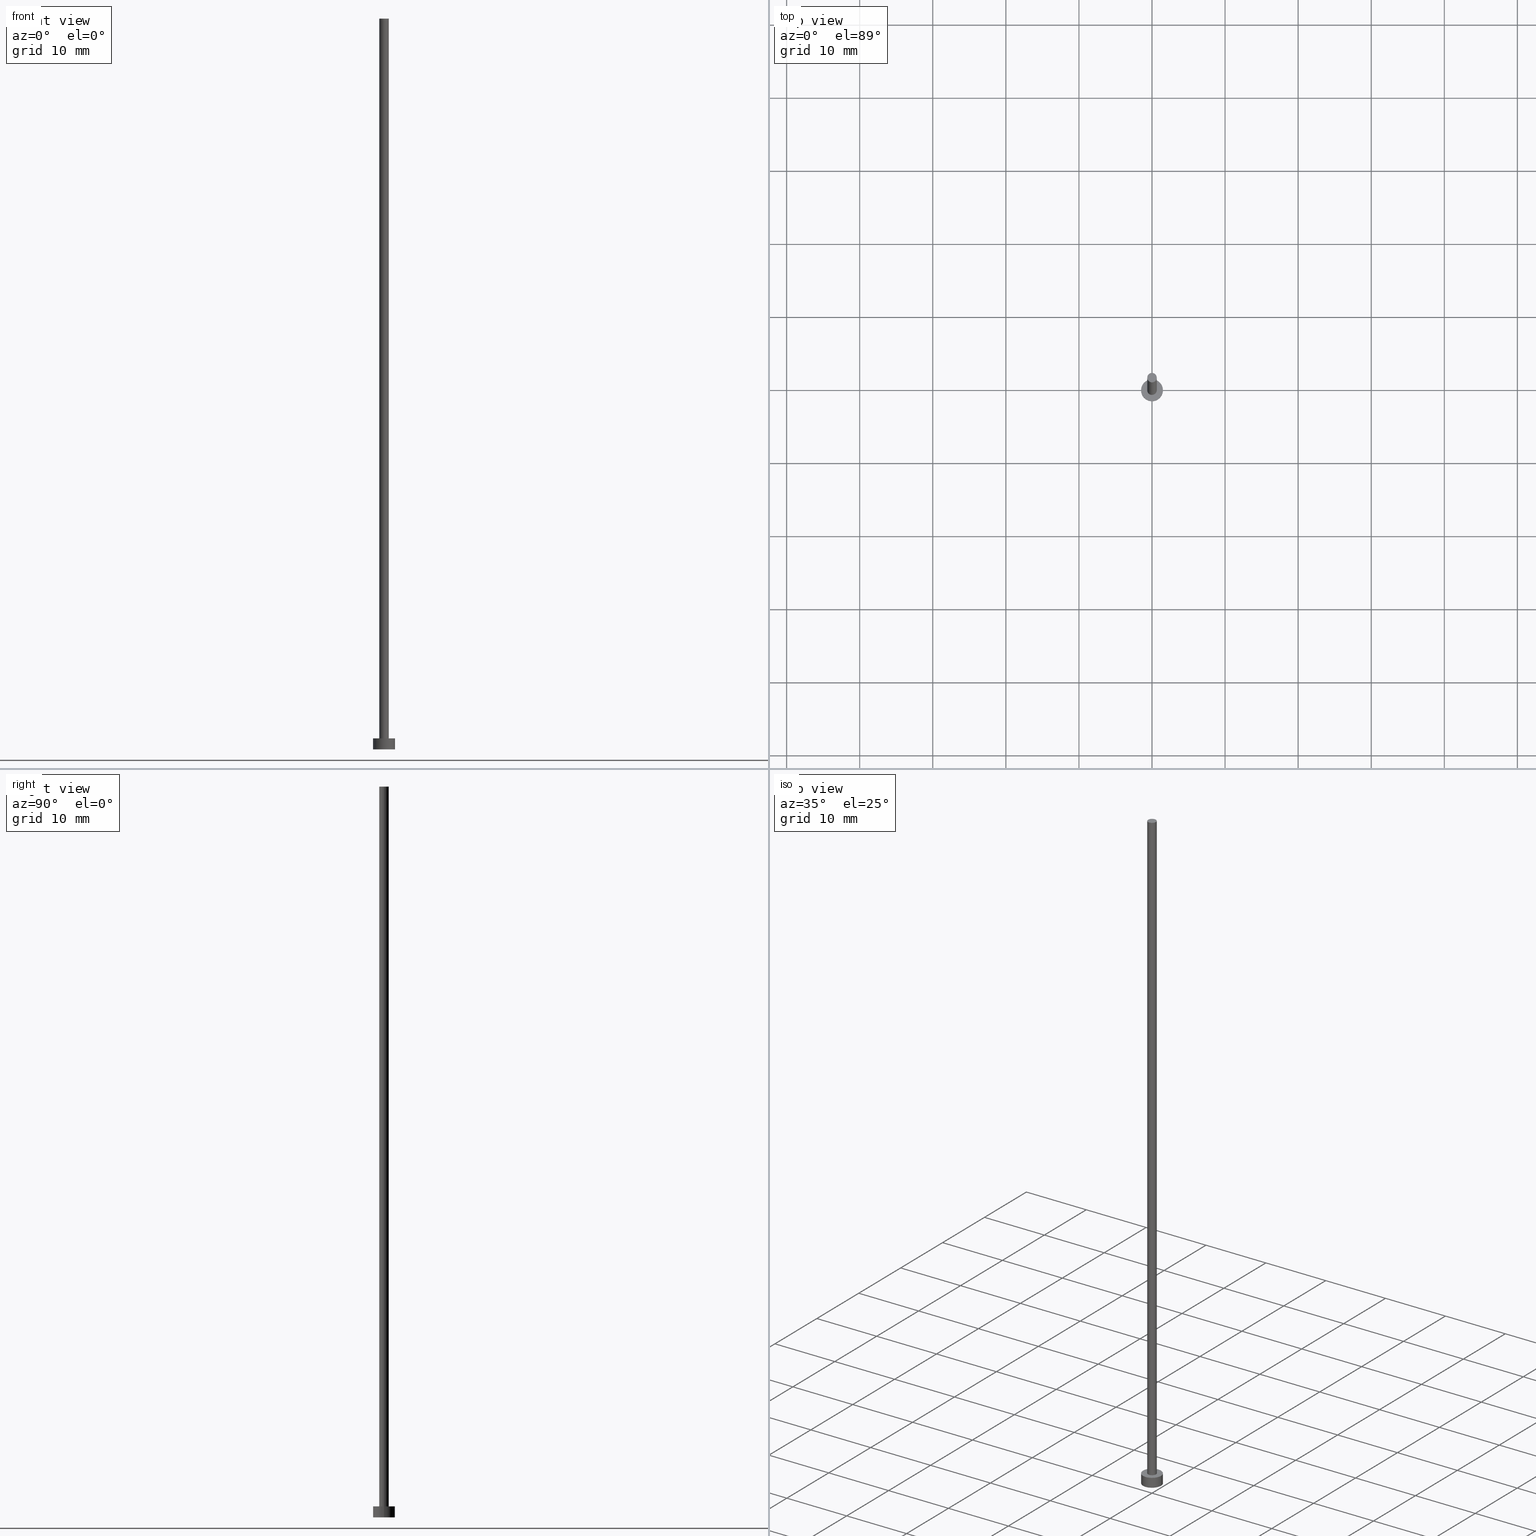
[diagram: canonical four-view strip — front | top / right | iso, engineering-drawing reading convention]
A machine part, canonical four-view strip (front | top / right | iso — engineering-drawing reading convention). The complete STEP part file that produces these views, byte-faithful:
ISO-10303-21;
HEADER;
FILE_DESCRIPTION (( 'STEP AP203' ),
    '1' );
FILE_NAME ('1749.STEP',
    '2023-02-13T15:26:27',
    ( '' ),
    ( '' ),
    'SwSTEP 2.0',
    'SolidWorks 2019',
    '' );
FILE_SCHEMA (( 'CONFIG_CONTROL_DESIGN' ));
ENDSEC;

DATA;
#1 = ORIENTED_EDGE ( 'NONE', *, *, #11, .F. ) ;
#2 = LINE ( 'NONE', #107, #121 ) ;
#3 = AXIS2_PLACEMENT_3D ( 'NONE', #81, #172, #35 ) ;
#4 = DIRECTION ( 'NONE',  ( 0.000000000000000000, 0.000000000000000000, 1.000000000000000000 ) ) ;
#5 = PERSON_AND_ORGANIZATION_ROLE ( 'creator' ) ;
#6 = CARTESIAN_POINT ( 'NONE',  ( 0.000000000000000000, 0.000000000000000000, 1.500000000000000000 ) ) ;
#7 = DIRECTION ( 'NONE',  ( -0.000000000000000000, -0.000000000000000000, -1.000000000000000000 ) ) ;
#8 = PRODUCT_RELATED_PRODUCT_CATEGORY ( 'detail', '', ( #56 ) ) ;
#9 = APPROVAL_PERSON_ORGANIZATION ( #180, #177, #71 ) ;
#10 = PERSON_AND_ORGANIZATION_ROLE ( 'creator' ) ;
#11 = EDGE_CURVE ( 'NONE', #237, #76, #69, .T. ) ;
#12 = APPROVAL_STATUS ( 'not_yet_approved' ) ;
#13 = ORIENTED_EDGE ( 'NONE', *, *, #221, .T. ) ;
#14 = CC_DESIGN_PERSON_AND_ORGANIZATION_ASSIGNMENT ( #66, #163, ( #166 ) ) ;
#15 = PERSON_AND_ORGANIZATION ( #217, #175 ) ;
#16 = AXIS2_PLACEMENT_3D ( 'NONE', #143, #207, #61 ) ;
#17 = CARTESIAN_POINT ( 'NONE',  ( -0.6500000000000000222, 0.000000000000000000, 1.500000000000000000 ) ) ;
#18 = CARTESIAN_POINT ( 'NONE',  ( 0.000000000000000000, 0.000000000000000000, 0.000000000000000000 ) ) ;
#19 = DIRECTION ( 'NONE',  ( 0.000000000000000000, 0.000000000000000000, 1.000000000000000000 ) ) ;
#20 = ADVANCED_FACE ( 'NONE', ( #116 ), #84, .T. ) ;
#21 =( NAMED_UNIT ( * ) PLANE_ANGLE_UNIT ( ) SI_UNIT ( $, .RADIAN. ) );
#22 = CARTESIAN_POINT ( 'NONE',  ( -1.500000000000000222, 0.000000000000000000, 1.500000000000000000 ) ) ;
#23 = COORDINATED_UNIVERSAL_TIME_OFFSET ( 1, 0, .AHEAD. ) ;
#24 = CYLINDRICAL_SURFACE ( 'NONE', #16, 1.500000000000000222 ) ;
#25 = DIRECTION ( 'NONE',  ( 0.000000000000000000, 0.000000000000000000, 1.000000000000000000 ) ) ;
#26 = EDGE_CURVE ( 'NONE', #115, #132, #2, .T. ) ;
#27 = DIRECTION ( 'NONE',  ( 0.000000000000000000, 0.000000000000000000, 1.000000000000000000 ) ) ;
#28 = PERSON_AND_ORGANIZATION ( #217, #175 ) ;
#29 = PLANE ( 'NONE',  #133 ) ;
#30 = EDGE_CURVE ( 'NONE', #222, #243, #145, .T. ) ;
#31 = CARTESIAN_POINT ( 'NONE',  ( 0.000000000000000000, 0.000000000000000000, 1.500000000000000000 ) ) ;
#32 = EDGE_LOOP ( 'NONE', ( #46, #140 ) ) ;
#33 = CARTESIAN_POINT ( 'NONE',  ( 0.000000000000000000, 0.000000000000000000, 1.500000000000000000 ) ) ;
#34 = DIRECTION ( 'NONE',  ( 1.000000000000000000, 0.000000000000000000, -0.000000000000000000 ) ) ;
#35 = DIRECTION ( 'NONE',  ( 1.000000000000000000, 0.000000000000000000, 0.000000000000000000 ) ) ;
#36 = DIRECTION ( 'NONE',  ( -1.000000000000000000, 0.000000000000000000, 0.000000000000000000 ) ) ;
#37 = CIRCLE ( 'NONE', #199, 0.6500000000000000222 ) ;
#38 = APPROVAL_PERSON_ORGANIZATION ( #28, #151, #249 ) ;
#39 = APPROVAL ( #12, 'NEUR�EN�' ) ;
#40 = APPROVAL_DATE_TIME ( #108, #151 ) ;
#41 = LINE ( 'NONE', #22, #136 ) ;
#42 = MANIFOLD_SOLID_BREP ( 'P�idat vysunut�m3', #174 ) ;
#43 = CARTESIAN_POINT ( 'NONE',  ( -0.6500000000000000222, 0.000000000000000000, 100.0000000000000000 ) ) ;
#44 = EDGE_CURVE ( 'NONE', #167, #202, #156, .T. ) ;
#45 = AXIS2_PLACEMENT_3D ( 'NONE', #6, #25, #192 ) ;
#46 = ORIENTED_EDGE ( 'NONE', *, *, #159, .F. ) ;
#47 = DIRECTION ( 'NONE',  ( -0.000000000000000000, -0.000000000000000000, -1.000000000000000000 ) ) ;
#48 = ORIENTED_EDGE ( 'NONE', *, *, #30, .T. ) ;
#49 = CALENDAR_DATE ( 2023, 13, 2 ) ;
#50 = EDGE_LOOP ( 'NONE', ( #98, #73 ) ) ;
#51 = AXIS2_PLACEMENT_3D ( 'NONE', #33, #19, #160 ) ;
#52 = ADVANCED_FACE ( 'NONE', ( #124 ), #24, .T. ) ;
#53 = DATE_AND_TIME ( #49, #242 ) ;
#54 = AXIS2_PLACEMENT_3D ( 'NONE', #111, #89, #72 ) ;
#55 = PLANE ( 'NONE',  #233 ) ;
#56 = PRODUCT ( '1749', '1749', '', ( #90 ) ) ;
#57 = EDGE_LOOP ( 'NONE', ( #235, #161, #48, #190 ) ) ;
#58 = DIRECTION ( 'NONE',  ( -0.000000000000000000, -0.000000000000000000, -1.000000000000000000 ) ) ;
#59 = CARTESIAN_POINT ( 'NONE',  ( -0.6500000000000000222, 0.000000000000000000, 100.0000000000000000 ) ) ;
#60 = DATE_TIME_ROLE ( 'creation_date' ) ;
#61 = DIRECTION ( 'NONE',  ( -1.000000000000000000, 0.000000000000000000, 0.000000000000000000 ) ) ;
#62 = AXIS2_PLACEMENT_3D ( 'NONE', #252, #78, #162 ) ;
#63 = CC_DESIGN_APPROVAL ( #177, ( #129 ) ) ;
#64 = PLANE ( 'NONE',  #189 ) ;
#65 = ADVANCED_FACE ( 'NONE', ( #195 ), #193, .T. ) ;
#66 = PERSON_AND_ORGANIZATION ( #217, #175 ) ;
#67 = DIRECTION ( 'NONE',  ( 1.000000000000000000, 0.000000000000000000, 0.000000000000000000 ) ) ;
#68 = CARTESIAN_POINT ( 'NONE',  ( 0.000000000000000000, 0.000000000000000000, 1.500000000000000000 ) ) ;
#69 = CIRCLE ( 'NONE', #51, 1.500000000000000222 ) ;
#70 = APPLICATION_CONTEXT ( 'configuration controlled 3d designs of mechanical parts and assemblies' ) ;
#71 = APPROVAL_ROLE ( '' ) ;
#72 = DIRECTION ( 'NONE',  ( 1.000000000000000000, 0.000000000000000000, 0.000000000000000000 ) ) ;
#73 = ORIENTED_EDGE ( 'NONE', *, *, #11, .T. ) ;
#74 = ORIENTED_EDGE ( 'NONE', *, *, #44, .F. ) ;
#75 = SECURITY_CLASSIFICATION_LEVEL ( 'unclassified' ) ;
#76 = VERTEX_POINT ( 'NONE', #250 ) ;
#77 = ADVANCED_FACE ( 'NONE', ( #106 ), #64, .T. ) ;
#78 = DIRECTION ( 'NONE',  ( 0.000000000000000000, 0.000000000000000000, 1.000000000000000000 ) ) ;
#79 = CIRCLE ( 'NONE', #62, 0.6500000000000000222 ) ;
#80 =( GEOMETRIC_REPRESENTATION_CONTEXT ( 3 ) GLOBAL_UNCERTAINTY_ASSIGNED_CONTEXT ( ( #169 ) ) GLOBAL_UNIT_ASSIGNED_CONTEXT ( ( #150, #21, #101 ) ) REPRESENTATION_CONTEXT ( 'NONE', 'WORKASPACE' ) );
#81 = CARTESIAN_POINT ( 'NONE',  ( 0.000000000000000000, 0.000000000000000000, 0.000000000000000000 ) ) ;
#82 = COORDINATED_UNIVERSAL_TIME_OFFSET ( 1, 0, .AHEAD. ) ;
#83 = CARTESIAN_POINT ( 'NONE',  ( 1.500000000000000222, 1.836970198721030181E-16, 1.500000000000000000 ) ) ;
#84 = CYLINDRICAL_SURFACE ( 'NONE', #104, 1.500000000000000222 ) ;
#85 = AXIS2_PLACEMENT_3D ( 'NONE', #68, #87, #67 ) ;
#86 = COORDINATED_UNIVERSAL_TIME_OFFSET ( 1, 0, .AHEAD. ) ;
#87 = DIRECTION ( 'NONE',  ( 0.000000000000000000, 0.000000000000000000, 1.000000000000000000 ) ) ;
#88 = PERSON_AND_ORGANIZATION_ROLE ( 'design_owner' ) ;
#89 = DIRECTION ( 'NONE',  ( 0.000000000000000000, 0.000000000000000000, 1.000000000000000000 ) ) ;
#90 = MECHANICAL_CONTEXT ( 'NONE', #70, 'mechanical' ) ;
#91 = AXIS2_PLACEMENT_3D ( 'NONE', #173, #4, #248 ) ;
#92 = CC_DESIGN_DATE_AND_TIME_ASSIGNMENT ( #155, #113, ( #117 ) ) ;
#93 = COORDINATED_UNIVERSAL_TIME_OFFSET ( 1, 0, .AHEAD. ) ;
#94 = ORIENTED_EDGE ( 'NONE', *, *, #185, .T. ) ;
#95 = PERSON_AND_ORGANIZATION ( #217, #175 ) ;
#96 = ORIENTED_EDGE ( 'NONE', *, *, #26, .T. ) ;
#97 = APPLICATION_CONTEXT ( 'configuration controlled 3d designs of mechanical parts and assemblies' ) ;
#98 = ORIENTED_EDGE ( 'NONE', *, *, #99, .T. ) ;
#99 = EDGE_CURVE ( 'NONE', #76, #237, #227, .T. ) ;
#100 = DIRECTION ( 'NONE',  ( -0.000000000000000000, -0.000000000000000000, -1.000000000000000000 ) ) ;
#101 =( NAMED_UNIT ( * ) SI_UNIT ( $, .STERADIAN. ) SOLID_ANGLE_UNIT ( ) );
#102 = CC_DESIGN_PERSON_AND_ORGANIZATION_ASSIGNMENT ( #232, #88, ( #56 ) ) ;
#103 = CARTESIAN_POINT ( 'NONE',  ( 0.6500000000000000222, 7.960204194457795477E-17, 1.500000000000000000 ) ) ;
#104 = AXIS2_PLACEMENT_3D ( 'NONE', #171, #128, #224 ) ;
#105 = DATE_AND_TIME ( #178, #170 ) ;
#106 = FACE_OUTER_BOUND ( 'NONE', #114, .T. ) ;
#107 = CARTESIAN_POINT ( 'NONE',  ( 0.6500000000000000222, 7.960204194457795477E-17, 100.0000000000000000 ) ) ;
#108 = DATE_AND_TIME ( #176, #200 ) ;
#109 = CARTESIAN_POINT ( 'NONE',  ( -1.500000000000000222, 0.000000000000000000, 0.000000000000000000 ) ) ;
#110 = FACE_OUTER_BOUND ( 'NONE', #57, .T. ) ;
#111 = CARTESIAN_POINT ( 'NONE',  ( 0.000000000000000000, 0.000000000000000000, 0.000000000000000000 ) ) ;
#112 = CC_DESIGN_SECURITY_CLASSIFICATION ( #117, ( #166 ) ) ;
#113 = DATE_TIME_ROLE ( 'classification_date' ) ;
#114 = EDGE_LOOP ( 'NONE', ( #239, #94 ) ) ;
#115 = VERTEX_POINT ( 'NONE', #149 ) ;
#116 = FACE_OUTER_BOUND ( 'NONE', #253, .T. ) ;
#117 = SECURITY_CLASSIFICATION ( '', '', #75 ) ;
#118 = DIRECTION ( 'NONE',  ( 0.000000000000000000, 0.000000000000000000, 1.000000000000000000 ) ) ;
#119 = EDGE_CURVE ( 'NONE', #237, #167, #225, .T. ) ;
#120 = EDGE_LOOP ( 'NONE', ( #245, #96, #13, #206 ) ) ;
#121 = VECTOR ( 'NONE', #226, 1000.000000000000000 ) ;
#122 = CIRCLE ( 'NONE', #54, 1.500000000000000222 ) ;
#123 = EDGE_CURVE ( 'NONE', #76, #202, #41, .T. ) ;
#124 = FACE_OUTER_BOUND ( 'NONE', #186, .T. ) ;
#125 = APPROVAL_STATUS ( 'not_yet_approved' ) ;
#126 = VECTOR ( 'NONE', #141, 1000.000000000000000 ) ;
#127 = CIRCLE ( 'NONE', #85, 0.6500000000000000222 ) ;
#128 = DIRECTION ( 'NONE',  ( -0.000000000000000000, -0.000000000000000000, -1.000000000000000000 ) ) ;
#129 = PRODUCT_DEFINITION ( 'NEZN�M�', '', #166, #137 ) ;
#130 = EDGE_LOOP ( 'NONE', ( #203, #74 ) ) ;
#131 = DIRECTION ( 'NONE',  ( -1.000000000000000000, 0.000000000000000000, 0.000000000000000000 ) ) ;
#132 = VERTEX_POINT ( 'NONE', #103 ) ;
#133 = AXIS2_PLACEMENT_3D ( 'NONE', #31, #218, #164 ) ;
#134 = APPROVAL_DATE_TIME ( #53, #39 ) ;
#135 = CARTESIAN_POINT ( 'NONE',  ( 0.000000000000000000, 0.000000000000000000, 0.000000000000000000 ) ) ;
#136 = VECTOR ( 'NONE', #100, 1000.000000000000000 ) ;
#137 = DESIGN_CONTEXT ( 'detailed design', #97, 'design' ) ;
#138 = ORIENTED_EDGE ( 'NONE', *, *, #123, .F. ) ;
#139 = PRODUCT_DEFINITION_SHAPE ( 'NONE', 'NONE',  #129 ) ;
#140 = ORIENTED_EDGE ( 'NONE', *, *, #221, .F. ) ;
#141 = DIRECTION ( 'NONE',  ( -0.000000000000000000, -0.000000000000000000, -1.000000000000000000 ) ) ;
#142 = ADVANCED_BREP_SHAPE_REPRESENTATION ( '1749', ( #42, #216 ), #80 ) ;
#143 = CARTESIAN_POINT ( 'NONE',  ( 0.000000000000000000, 0.000000000000000000, 1.500000000000000000 ) ) ;
#144 = APPLICATION_PROTOCOL_DEFINITION ( 'international standard', 'config_control_design', 1994, #70 ) ;
#145 = LINE ( 'NONE', #59, #152 ) ;
#146 = LOCAL_TIME ( 16, 26, 27.00000000000000000, #183 ) ;
#147 = EDGE_CURVE ( 'NONE', #222, #115, #208, .T. ) ;
#148 = CALENDAR_DATE ( 2023, 13, 2 ) ;
#149 = CARTESIAN_POINT ( 'NONE',  ( 0.6500000000000000222, 7.960204194457795477E-17, 100.0000000000000000 ) ) ;
#150 =( LENGTH_UNIT ( ) NAMED_UNIT ( * ) SI_UNIT ( .MILLI., .METRE. ) );
#151 = APPROVAL ( #229, 'NEUR�EN�' ) ;
#152 = VECTOR ( 'NONE', #58, 1000.000000000000000 ) ;
#153 = AXIS2_PLACEMENT_3D ( 'NONE', #241, #47, #131 ) ;
#154 = CARTESIAN_POINT ( 'NONE',  ( 1.500000000000000222, 1.836970198721030181E-16, 1.500000000000000000 ) ) ;
#155 = DATE_AND_TIME ( #182, #146 ) ;
#156 = CIRCLE ( 'NONE', #3, 1.500000000000000222 ) ;
#157 = ORIENTED_EDGE ( 'NONE', *, *, #44, .T. ) ;
#158 = LOCAL_TIME ( 16, 26, 27.00000000000000000, #82 ) ;
#159 = EDGE_CURVE ( 'NONE', #243, #132, #37, .T. ) ;
#160 = DIRECTION ( 'NONE',  ( 1.000000000000000000, 0.000000000000000000, 0.000000000000000000 ) ) ;
#161 = ORIENTED_EDGE ( 'NONE', *, *, #147, .F. ) ;
#162 = DIRECTION ( 'NONE',  ( 1.000000000000000000, 0.000000000000000000, 0.000000000000000000 ) ) ;
#163 = PERSON_AND_ORGANIZATION_ROLE ( 'design_supplier' ) ;
#164 = DIRECTION ( 'NONE',  ( 1.000000000000000000, 0.000000000000000000, -0.000000000000000000 ) ) ;
#165 = CC_DESIGN_PERSON_AND_ORGANIZATION_ASSIGNMENT ( #211, #5, ( #129 ) ) ;
#166 = PRODUCT_DEFINITION_FORMATION_WITH_SPECIFIED_SOURCE ( 'LIBOVOLN�', '', #56, .NOT_KNOWN. ) ;
#167 = VERTEX_POINT ( 'NONE', #179 ) ;
#168 = DIRECTION ( 'NONE',  ( 1.000000000000000000, 0.000000000000000000, 0.000000000000000000 ) ) ;
#169 = UNCERTAINTY_MEASURE_WITH_UNIT (LENGTH_MEASURE( 1.000000000000000082E-05 ), #150, 'distance_accuracy_value', 'NONE');
#170 = LOCAL_TIME ( 16, 26, 27.00000000000000000, #23 ) ;
#171 = CARTESIAN_POINT ( 'NONE',  ( 0.000000000000000000, 0.000000000000000000, 1.500000000000000000 ) ) ;
#172 = DIRECTION ( 'NONE',  ( 0.000000000000000000, 0.000000000000000000, 1.000000000000000000 ) ) ;
#173 = CARTESIAN_POINT ( 'NONE',  ( 0.000000000000000000, 0.000000000000000000, 100.0000000000000000 ) ) ;
#174 = CLOSED_SHELL ( 'NONE', ( #65, #20, #52, #201, #247, #244, #77 ) ) ;
#175 = ORGANIZATION ( 'NEUR�EN�', 'NEUR�EN�', '' ) ;
#176 = CALENDAR_DATE ( 2023, 13, 2 ) ;
#177 = APPROVAL ( #125, 'NEUR�EN�' ) ;
#178 = CALENDAR_DATE ( 2023, 13, 2 ) ;
#179 = CARTESIAN_POINT ( 'NONE',  ( 1.500000000000000222, 1.836970198721030181E-16, 0.000000000000000000 ) ) ;
#180 = PERSON_AND_ORGANIZATION ( #217, #175 ) ;
#181 = CC_DESIGN_APPROVAL ( #151, ( #166 ) ) ;
#182 = CALENDAR_DATE ( 2023, 13, 2 ) ;
#183 = COORDINATED_UNIVERSAL_TIME_OFFSET ( 1, 0, .AHEAD. ) ;
#184 = ORIENTED_EDGE ( 'NONE', *, *, #119, .F. ) ;
#185 = EDGE_CURVE ( 'NONE', #115, #222, #79, .T. ) ;
#186 = EDGE_LOOP ( 'NONE', ( #184, #188, #223, #220 ) ) ;
#187 = SHAPE_DEFINITION_REPRESENTATION ( #139, #142 ) ;
#188 = ORIENTED_EDGE ( 'NONE', *, *, #99, .F. ) ;
#189 = AXIS2_PLACEMENT_3D ( 'NONE', #212, #214, #34 ) ;
#190 = ORIENTED_EDGE ( 'NONE', *, *, #159, .T. ) ;
#191 = DIRECTION ( 'NONE',  ( 0.000000000000000000, 0.000000000000000000, 1.000000000000000000 ) ) ;
#192 = DIRECTION ( 'NONE',  ( 1.000000000000000000, 0.000000000000000000, 0.000000000000000000 ) ) ;
#193 = CYLINDRICAL_SURFACE ( 'NONE', #204, 0.6500000000000000222 ) ;
#194 = APPROVAL_DATE_TIME ( #105, #177 ) ;
#195 = FACE_OUTER_BOUND ( 'NONE', #120, .T. ) ;
#196 = DIRECTION ( 'NONE',  ( 1.000000000000000000, 0.000000000000000000, -0.000000000000000000 ) ) ;
#197 = CC_DESIGN_PERSON_AND_ORGANIZATION_ASSIGNMENT ( #15, #254, ( #117 ) ) ;
#198 = APPLICATION_PROTOCOL_DEFINITION ( 'international standard', 'config_control_design', 1994, #97 ) ;
#199 = AXIS2_PLACEMENT_3D ( 'NONE', #230, #191, #168 ) ;
#200 = LOCAL_TIME ( 16, 26, 27.00000000000000000, #86 ) ;
#201 = ADVANCED_FACE ( 'NONE', ( #231, #240 ), #29, .T. ) ;
#202 = VERTEX_POINT ( 'NONE', #109 ) ;
#203 = ORIENTED_EDGE ( 'NONE', *, *, #209, .F. ) ;
#204 = AXIS2_PLACEMENT_3D ( 'NONE', #210, #7, #36 ) ;
#205 = CC_DESIGN_DATE_AND_TIME_ASSIGNMENT ( #215, #60, ( #129 ) ) ;
#206 = ORIENTED_EDGE ( 'NONE', *, *, #30, .F. ) ;
#207 = DIRECTION ( 'NONE',  ( -0.000000000000000000, -0.000000000000000000, -1.000000000000000000 ) ) ;
#208 = CIRCLE ( 'NONE', #91, 0.6500000000000000222 ) ;
#209 = EDGE_CURVE ( 'NONE', #202, #167, #122, .T. ) ;
#210 = CARTESIAN_POINT ( 'NONE',  ( 0.000000000000000000, 0.000000000000000000, 100.0000000000000000 ) ) ;
#211 = PERSON_AND_ORGANIZATION ( #217, #175 ) ;
#212 = CARTESIAN_POINT ( 'NONE',  ( 0.000000000000000000, 0.000000000000000000, 100.0000000000000000 ) ) ;
#213 = DIRECTION ( 'NONE',  ( 1.000000000000000000, 0.000000000000000000, 0.000000000000000000 ) ) ;
#214 = DIRECTION ( 'NONE',  ( 0.000000000000000000, 0.000000000000000000, 1.000000000000000000 ) ) ;
#215 = DATE_AND_TIME ( #148, #158 ) ;
#216 = AXIS2_PLACEMENT_3D ( 'NONE', #18, #118, #213 ) ;
#217 = PERSON ( 'NEUR�EN�', 'NEUR�EN�', 'NEUR�EN�', ('NEUR�EN�'), ('NEUR�EN�'), ('NEUR�EN�') ) ;
#218 = DIRECTION ( 'NONE',  ( 0.000000000000000000, 0.000000000000000000, 1.000000000000000000 ) ) ;
#219 = FACE_OUTER_BOUND ( 'NONE', #130, .T. ) ;
#220 = ORIENTED_EDGE ( 'NONE', *, *, #209, .T. ) ;
#221 = EDGE_CURVE ( 'NONE', #132, #243, #127, .T. ) ;
#222 = VERTEX_POINT ( 'NONE', #43 ) ;
#223 = ORIENTED_EDGE ( 'NONE', *, *, #123, .T. ) ;
#224 = DIRECTION ( 'NONE',  ( -1.000000000000000000, 0.000000000000000000, 0.000000000000000000 ) ) ;
#225 = LINE ( 'NONE', #83, #126 ) ;
#226 = DIRECTION ( 'NONE',  ( -0.000000000000000000, -0.000000000000000000, -1.000000000000000000 ) ) ;
#227 = CIRCLE ( 'NONE', #45, 1.500000000000000222 ) ;
#228 = CC_DESIGN_APPROVAL ( #39, ( #117 ) ) ;
#229 = APPROVAL_STATUS ( 'not_yet_approved' ) ;
#230 = CARTESIAN_POINT ( 'NONE',  ( 0.000000000000000000, 0.000000000000000000, 1.500000000000000000 ) ) ;
#231 = FACE_BOUND ( 'NONE', #32, .T. ) ;
#232 = PERSON_AND_ORGANIZATION ( #217, #175 ) ;
#233 = AXIS2_PLACEMENT_3D ( 'NONE', #135, #27, #196 ) ;
#234 = CYLINDRICAL_SURFACE ( 'NONE', #153, 0.6500000000000000222 ) ;
#235 = ORIENTED_EDGE ( 'NONE', *, *, #26, .F. ) ;
#236 = APPROVAL_ROLE ( '' ) ;
#237 = VERTEX_POINT ( 'NONE', #154 ) ;
#238 = CC_DESIGN_PERSON_AND_ORGANIZATION_ASSIGNMENT ( #251, #10, ( #166 ) ) ;
#239 = ORIENTED_EDGE ( 'NONE', *, *, #147, .T. ) ;
#240 = FACE_OUTER_BOUND ( 'NONE', #50, .T. ) ;
#241 = CARTESIAN_POINT ( 'NONE',  ( 0.000000000000000000, 0.000000000000000000, 100.0000000000000000 ) ) ;
#242 = LOCAL_TIME ( 16, 26, 27.00000000000000000, #93 ) ;
#243 = VERTEX_POINT ( 'NONE', #17 ) ;
#244 = ADVANCED_FACE ( 'NONE', ( #110 ), #234, .T. ) ;
#245 = ORIENTED_EDGE ( 'NONE', *, *, #185, .F. ) ;
#246 = APPROVAL_PERSON_ORGANIZATION ( #95, #39, #236 ) ;
#247 = ADVANCED_FACE ( 'NONE', ( #219 ), #55, .F. ) ;
#248 = DIRECTION ( 'NONE',  ( 1.000000000000000000, 0.000000000000000000, 0.000000000000000000 ) ) ;
#249 = APPROVAL_ROLE ( '' ) ;
#250 = CARTESIAN_POINT ( 'NONE',  ( -1.500000000000000222, 0.000000000000000000, 1.500000000000000000 ) ) ;
#251 = PERSON_AND_ORGANIZATION ( #217, #175 ) ;
#252 = CARTESIAN_POINT ( 'NONE',  ( 0.000000000000000000, 0.000000000000000000, 100.0000000000000000 ) ) ;
#253 = EDGE_LOOP ( 'NONE', ( #1, #255, #157, #138 ) ) ;
#254 = PERSON_AND_ORGANIZATION_ROLE ( 'classification_officer' ) ;
#255 = ORIENTED_EDGE ( 'NONE', *, *, #119, .T. ) ;
ENDSEC;
END-ISO-10303-21;
